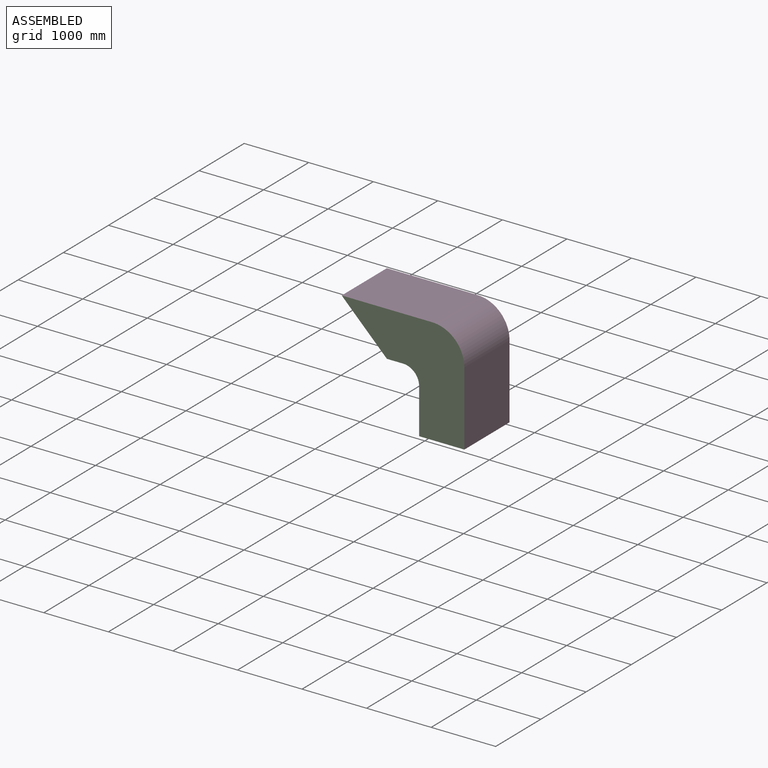
[diagram: assembled view]
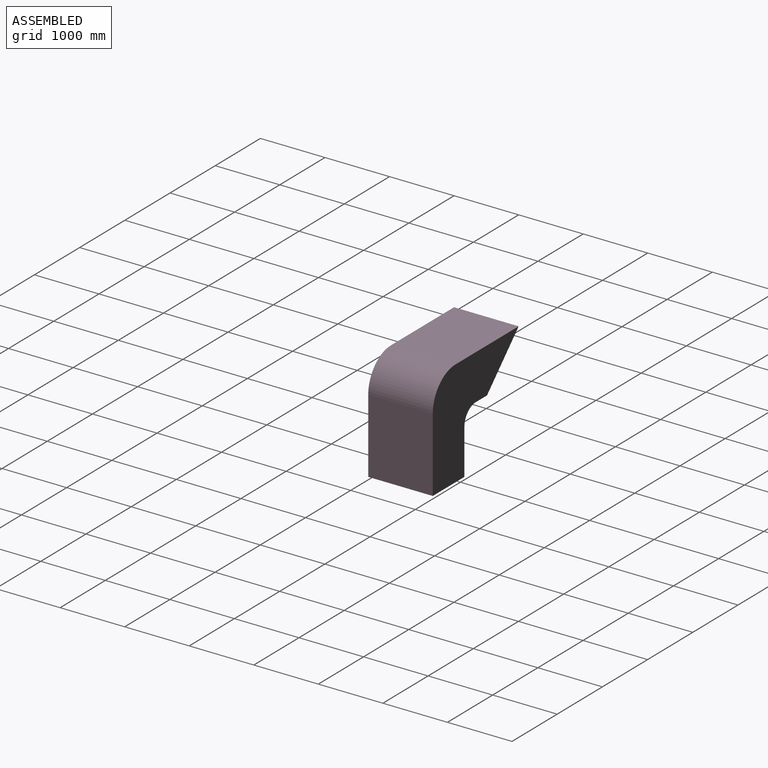
[diagram: assembled view, second angle]
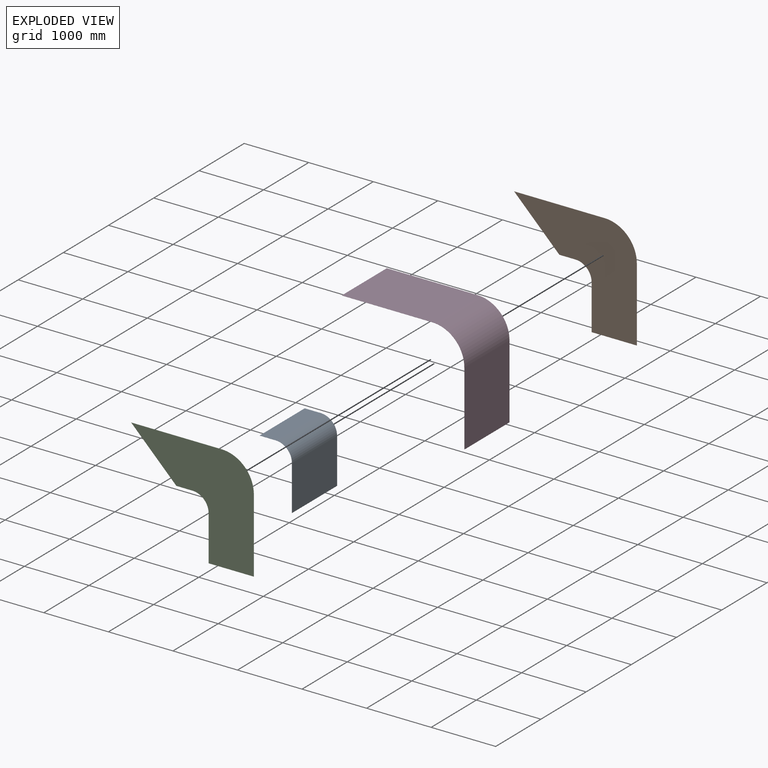
[diagram: exploded view]
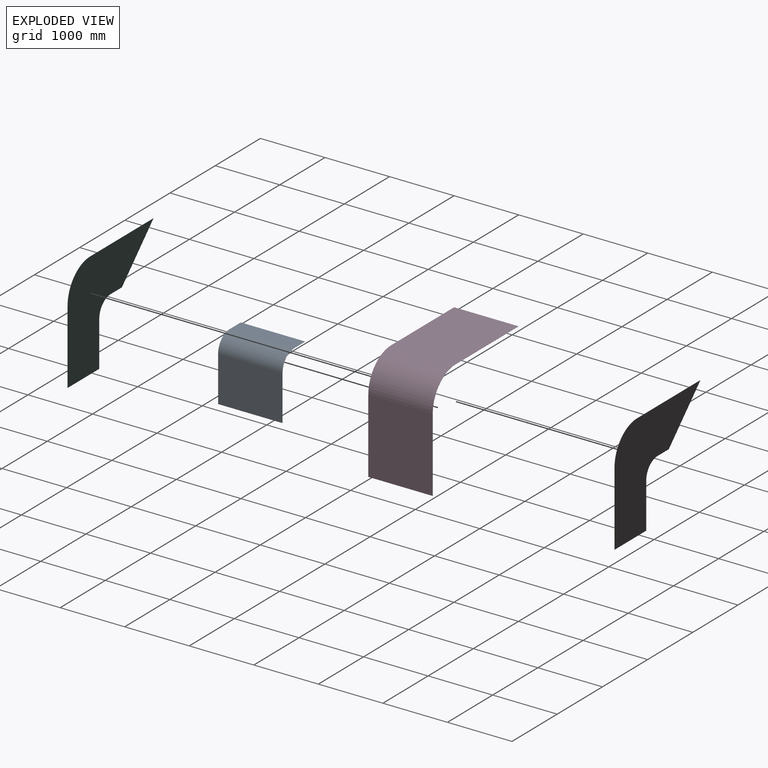
[diagram: exploded view, second angle]
ASSEMBLY  parts=4 mates=3
PART A: 10 faces, bbox 501.5x997.5x951.5 mm
  f0: plane 997.5x700mm, normal (-1,0,0), area 698250mm2, adj f1,f7,f8,f9
  f1: plane 997.5x1.5mm, normal (0,0,-1), area 1496.2mm2, adj f0,f2,f8,f9
  f2: plane 997.5x700mm, normal (1,0,0), area 698250mm2, adj f1,f3,f8,f9
  f3: cylinder r=251.5mm len=997.5mm, axis (0,1,0), area 394067.6mm2, adj f2,f4,f8,f9
  f4: plane 997.5x250mm, normal (0,0,1), area 249375mm2, adj f3,f5,f8,f9
  f5: plane 997.5x1.5mm, normal (-1,0,0), area 1496.3mm2, adj f4,f6,f8,f9
  f6: plane 997.5x250mm, normal (0,0,-1), area 249375mm2, adj f5,f7,f8,f9
  f7: cylinder r=250mm len=997.5mm, axis (0,1,0), area 391717.3mm2, adj f0,f6,f8,f9
  f8: plane 951.5x501.5mm, normal (0,-1,0), area 2015.8mm2, adj f0,f1,f2,f3,f4,f5,f6,f7
  f9: plane 951.5x501.5mm, normal (0,1,0), area 2015.8mm2, adj f0,f1,f2,f3,f4,f5,f6,f7
PART B: 10 faces, bbox 1900x1.3x1650 mm
  f0: plane 1400x1.25mm, normal (0,0,1), area 1750mm2, adj f1,f7,f8,f9
  f1: plane 700x700mm, normal (-0.71,0,-0.71), area 1237.4mm2, adj f0,f2,f8,f9
  f2: plane 250x1.25mm, normal (0,0,-1), area 312.5mm2, adj f1,f3,f8,f9
  f3: cylinder r=250mm len=250mm, axis (0,1,0), area 490.9mm2, adj f2,f4,f8,f9
  f4: plane 700x1.25mm, normal (-1,0,0), area 875mm2, adj f3,f5,f8,f9
  f5: plane 700x1.25mm, normal (0,0,-1), area 875mm2, adj f4,f6,f8,f9
  f6: plane 1150x1.25mm, normal (1,0,0), area 1437.5mm2, adj f5,f7,f8,f9
  f7: cylinder r=500mm len=500mm, axis (0,1,0), area 981.7mm2, adj f0,f6,f8,f9
  f8: plane 1900x1650mm, normal (0,-1,0), area 1709762.2mm2, adj f0,f1,f2,f3,f4,f5,f6,f7
  f9: plane 1900x1650mm, normal (0,1,0), area 1709762.2mm2, adj f0,f1,f2,f3,f4,f5,f6,f7
PART C: same geometry as B
PART D: 10 faces, bbox 1900x997.5x1650 mm
  f0: plane 1398.75x997.5mm, normal (0,0,-1), area 1395253.1mm2, adj f1,f7,f8,f9
  f1: cylinder r=498.75mm len=997.5mm, axis (0,1,0), area 781476.1mm2, adj f0,f2,f8,f9
  f2: plane 1150x997.5mm, normal (-1,0,0), area 1147125mm2, adj f1,f3,f8,f9
  f3: plane 997.5x1.25mm, normal (0,0,-1), area 1246.9mm2, adj f2,f4,f8,f9
  f4: plane 1150x997.5mm, normal (1,0,0), area 1147125mm2, adj f3,f5,f8,f9
  f5: cylinder r=500mm len=997.5mm, axis (0,1,0), area 783434.7mm2, adj f4,f6,f8,f9
  f6: plane 1400x997.5mm, normal (0,0,1), area 1396500mm2, adj f5,f7,f8,f9
  f7: plane 997.5x1.25mm, normal (-0.71,0,-0.71), area 1763.3mm2, adj f0,f6,f8,f9
  f8: plane 1900x1650mm, normal (0,-1,0), area 4167.2mm2, adj f0,f1,f2,f3,f4,f5,f6,f7
  f9: plane 1900x1650mm, normal (0,1,0), area 4167.2mm2, adj f0,f1,f2,f3,f4,f5,f6,f7
PLACE A t=(362.28,-0.63,-82.24)mm
PLACE B t=(362.28,0.62,-82.24)mm
PLACE C t=(362.28,-998.13,-82.24)mm
PLACE D t=(362.28,-0.63,-82.24)mm
MATE fastened A.f9 <-> B.f8  axis (0,1,0) through (-87.72,-0.63,-82.24)mm
MATE fastened D.f8 <-> C.f9  axis (0,-1,0) through (-1287.72,-998.13,1567.76)mm
MATE fastened C.f9 <-> A.f8  axis (0,1,0) through (-87.72,-998.13,-82.24)mm
